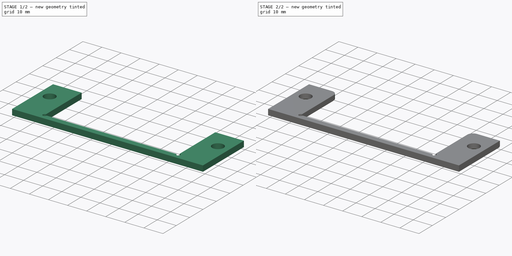
[diagram: build sequence overview — one tinted view per stage of 2, left to right]
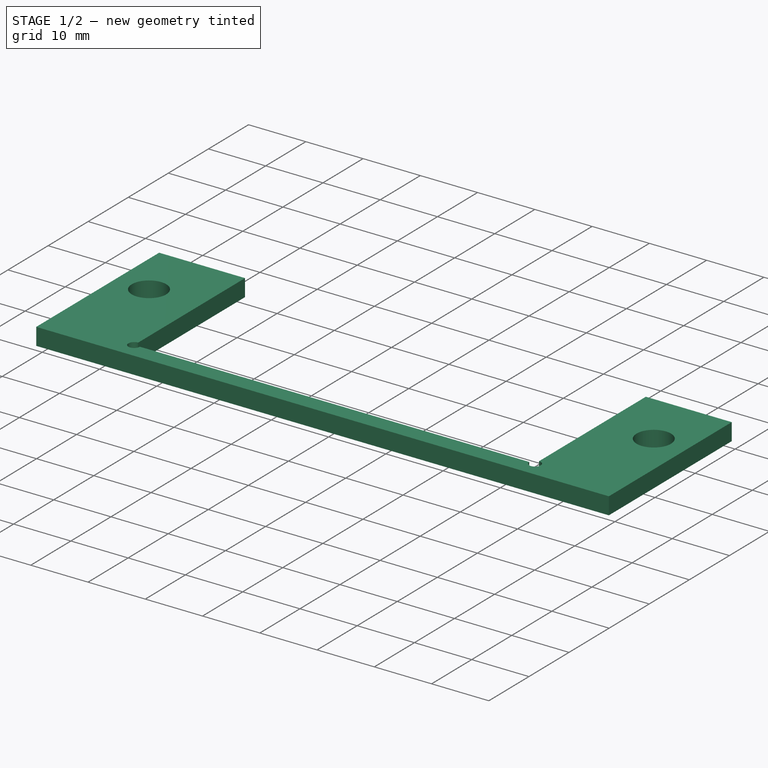
[diagram: stage 1 of 2 — iso view after this stage's code; geometry added in this stage tinted green]
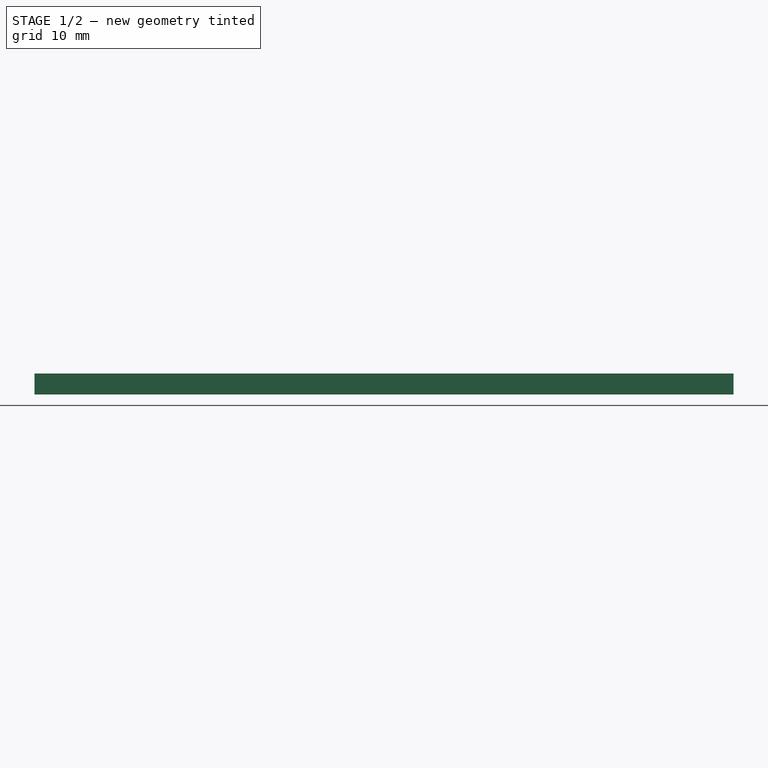
[diagram: stage 1 of 2 — front view after this stage's code; geometry added in this stage tinted green]
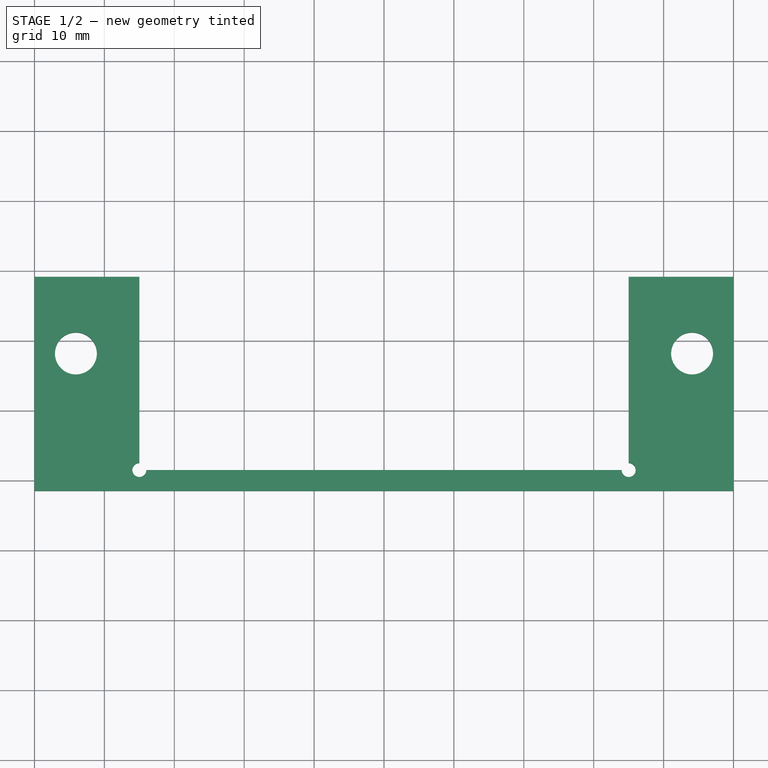
[diagram: stage 1 of 2 — top view after this stage's code; geometry added in this stage tinted green]
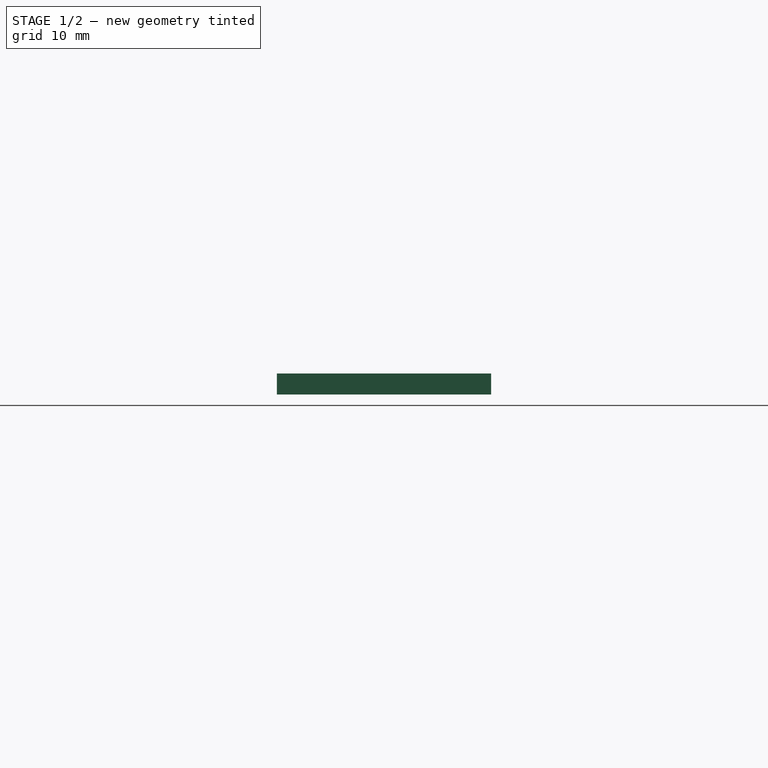
[diagram: stage 1 of 2 — right view after this stage's code; geometry added in this stage tinted green]
FCSTD DOCUMENT  (FreeCAD 0.15R4671 (Git))
Label: Ausrichtung Fraesspindel
License: All rights reserved
LicenseURL: http://de.wikipedia.org/wiki/Alle_Rechte_vorbehalten
objects: Sketcher::SketchObject×2, PartDesign::Pad×1, PartDesign::Pocket×1, PartDesign::Fillet×1, PartDesign::Chamfer×1
note: 8 computed .brp shape members not serialized (recipe doc carries the construction recipe); baked Part::Feature solids carry a one-line shape summary decoded from their .brp

FEATURE [Sketcher::SketchObject] Sketch
  sketch-geometry (12):
    g0: LineSegment StartX=-35 StartY=29.15 StartZ=0 EndX=-35 EndY=1.5 EndZ=0
    g1: LineSegment StartX=-35 StartY=1.5 StartZ=0 EndX=35 EndY=1.5 EndZ=0
    g2: LineSegment StartX=35 StartY=1.5 StartZ=0 EndX=35 EndY=29.15 EndZ=0
    g3: LineSegment StartX=35 StartY=29.15 StartZ=0 EndX=50 EndY=29.15 EndZ=0
    g4: LineSegment StartX=50 StartY=29.15 StartZ=0 EndX=50 EndY=-1.5 EndZ=0
    g5: LineSegment StartX=50 StartY=-1.5 StartZ=0 EndX=-50 EndY=-1.5 EndZ=0
    g6: LineSegment StartX=-50 StartY=-1.5 StartZ=0 EndX=-50 EndY=29.15 EndZ=0
    g7: LineSegment StartX=-50 StartY=29.15 StartZ=0 EndX=-35 EndY=29.15 EndZ=0
    g8: LineSegment [constr] StartX=35 StartY=1.5 StartZ=0 EndX=35 EndY=-1.5 EndZ=0
    g9: LineSegment [constr] StartX=-44.075 StartY=18.17 StartZ=0 EndX=44.075 EndY=18.17 EndZ=0
    g10: Circle CenterX=-44.075 CenterY=18.17 CenterZ=0 NormalX=0 NormalY=0 NormalZ=1 Radius=3
    g11: Circle CenterX=44.075 CenterY=18.17 CenterZ=0 NormalX=0 NormalY=0 NormalZ=1 Radius=3
  constraints (34):
    c: Vertical(g0)
    c: Coincident(g0,g1)
    c: Horizontal(g1)
    c: Coincident(g1,g2)
    c: Vertical(g2)
    c: Coincident(g2,g3)
    c: Horizontal(g3)
    c: Coincident(g3,g4)
    c: Vertical(g4)
    c: Coincident(g4,g5)
    c: Horizontal(g5)
    c: Coincident(g5,g6)
    c: Vertical(g6)
    c: Coincident(g6,g7)
    c: Coincident(g7,g0)
    c: Horizontal(g7)
    c: Equal(g7,g3)
    c: Symmetric(g0,g1,g-2)
    c: Equal(g0,g2)
    c: Coincident(g8,g1)
    c: PointOnObject(g8,g5)
    c: Symmetric(g1,g8,g-1)
    c: DistanceY(g8) = -3
    c: DistanceX(g3) = 15
    c: DistanceX(g5) = -100
    c: DistanceY(g6) = 30.65
    c: Horizontal(g9)
    c: Symmetric(g9,g9,g-2)
    c: Coincident(g10,g9)
    c: Coincident(g11,g9)
    c: Radius(g11) = 3
    c: Equal(g11,g10)
    c: DistanceY(g5,g9) = 19.67
    c: DistanceX(g5,g9) = 5.925
FEATURE [PartDesign::Pad] Pad
  Length = 3
  Length2 = 100
  Sketch = -> Sketch
  Type = 0
FEATURE [Sketcher::SketchObject] Sketch001
  ExternalGeometry = -> [Pad]
  Placement = pos=(0,0,3) rot=(0,0,1;0rad)
  Support = -> Pad [Face12]
  sketch-geometry (2):
    g0: Circle CenterX=-35 CenterY=1.5 CenterZ=0 NormalX=0 NormalY=0 NormalZ=1 Radius=1
    g1: Circle CenterX=35 CenterY=1.5 CenterZ=0 NormalX=0 NormalY=0 NormalZ=1 Radius=1
  constraints (4):
    c: Coincident(g0,g-3)
    c: Coincident(g1,g-3)
    c: Radius(g1) = 1
    c: Equal(g1,g0)
FEATURE [PartDesign::Pocket] Pocket
  Length = 5
  Sketch = -> Sketch001
  Type = 1
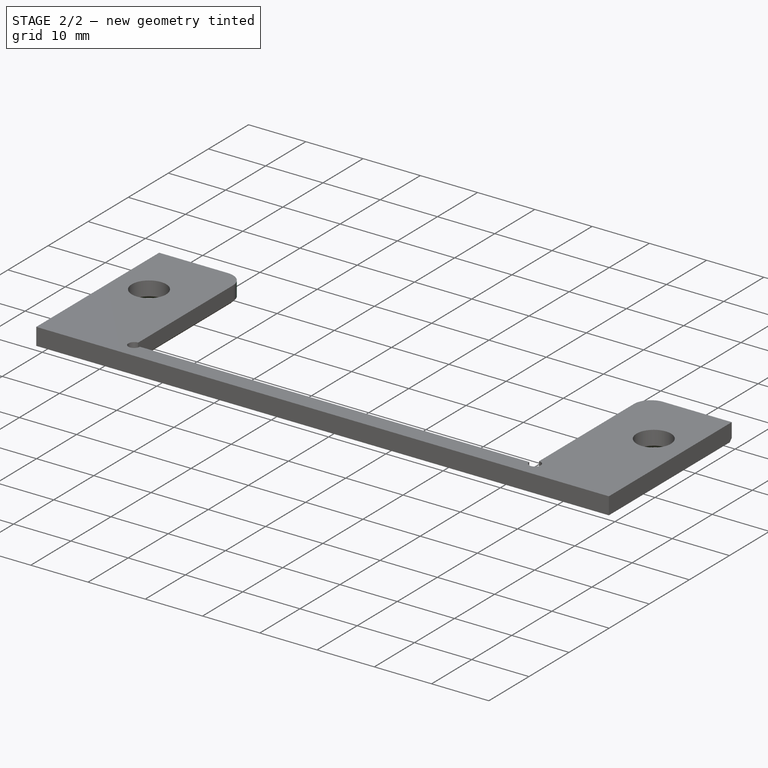
[diagram: stage 2 of 2 — iso view after this stage's code; geometry added in this stage tinted green]
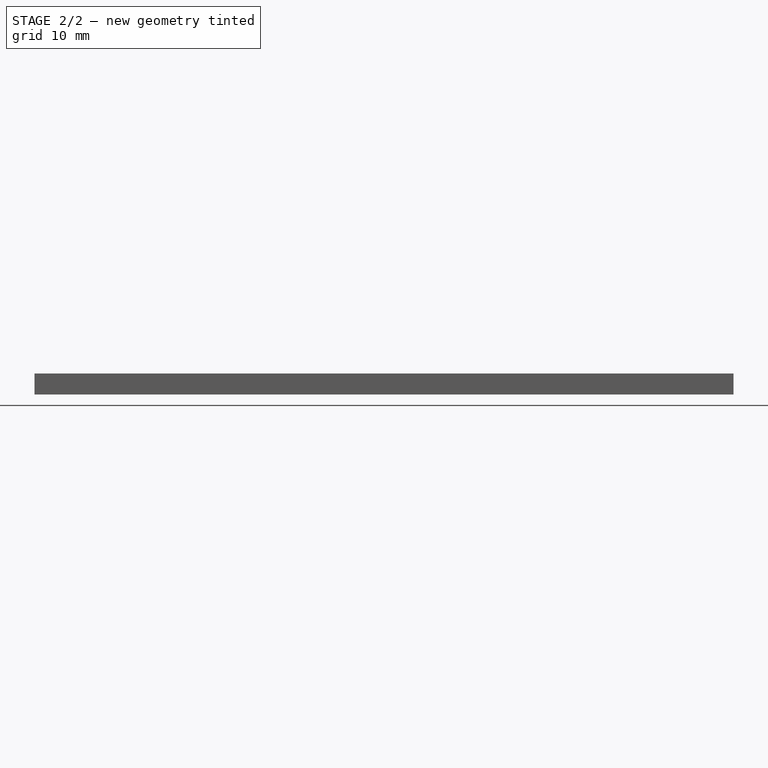
[diagram: stage 2 of 2 — front view after this stage's code; geometry added in this stage tinted green]
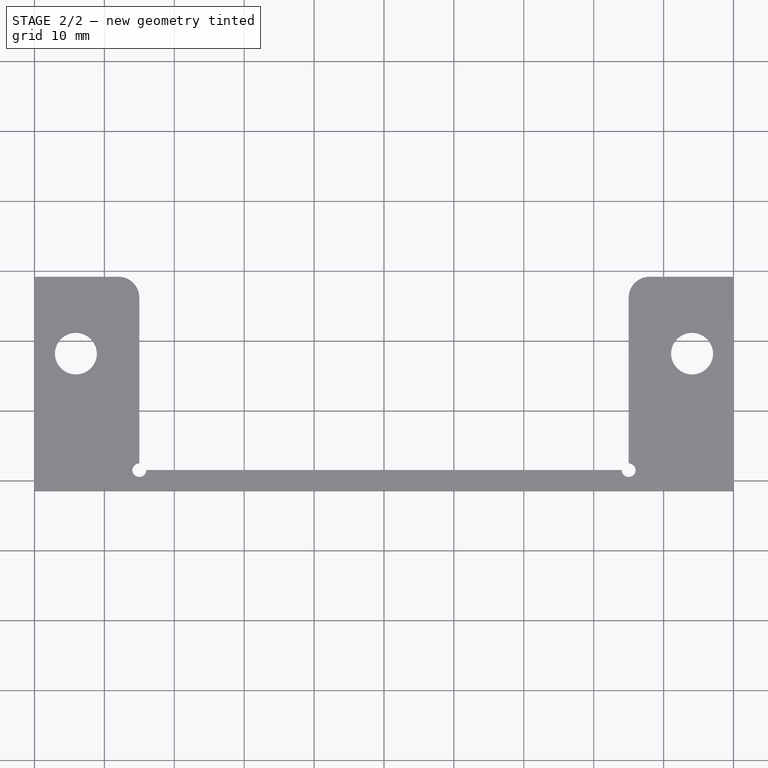
[diagram: stage 2 of 2 — top view after this stage's code; geometry added in this stage tinted green]
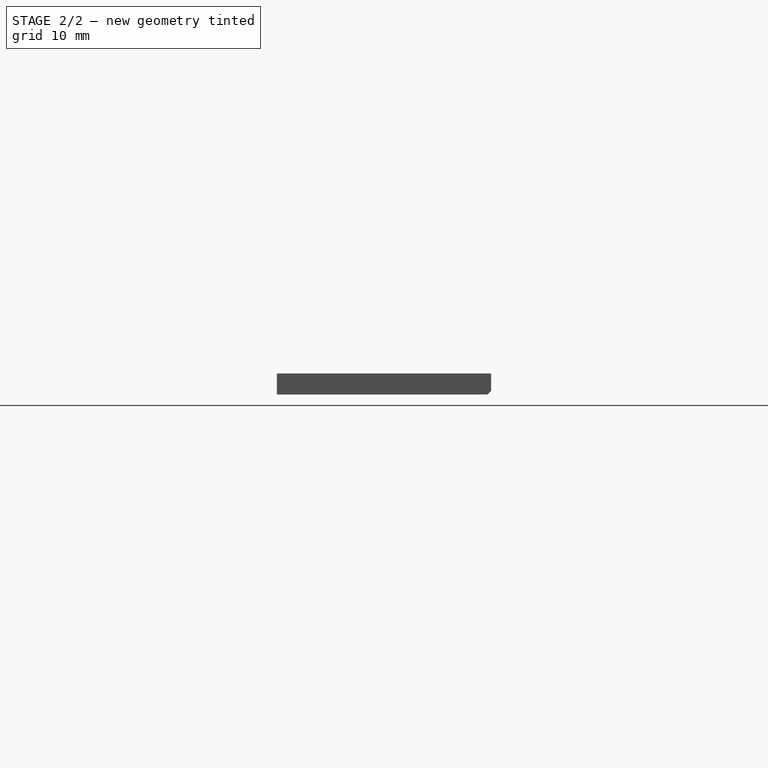
[diagram: stage 2 of 2 — right view after this stage's code; geometry added in this stage tinted green]
FEATURE [PartDesign::Fillet] Fillet
  Base = -> Pocket [Edge4,Edge34]
  Radius = 3
FEATURE [PartDesign::Chamfer] Chamfer
  Base = -> Fillet [Edge11,Edge1,Edge16,Edge6,Edge14,Edge17,Edge18]
  Size = 0.5
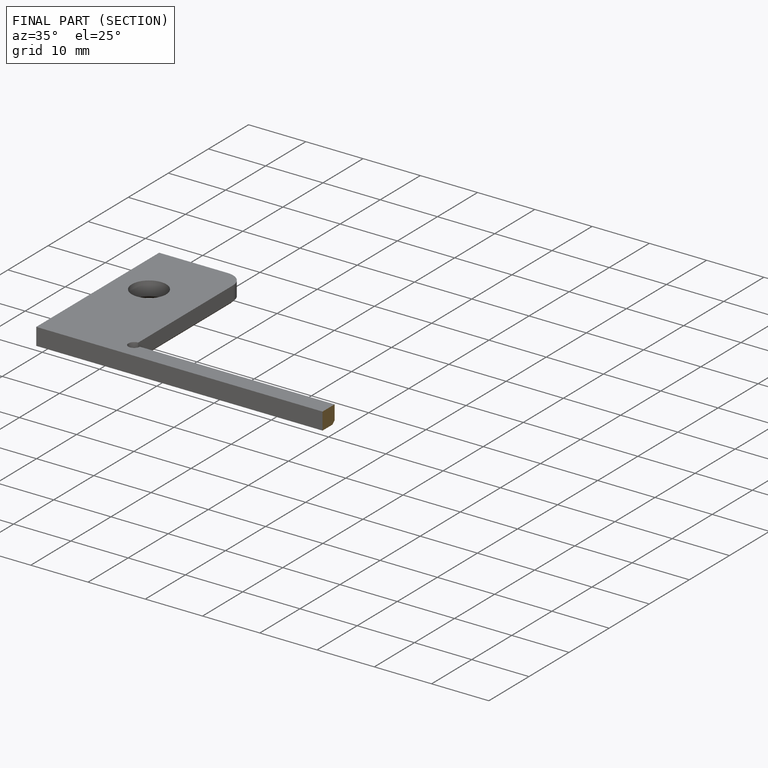
[diagram: finished part — half-section view (interior)]
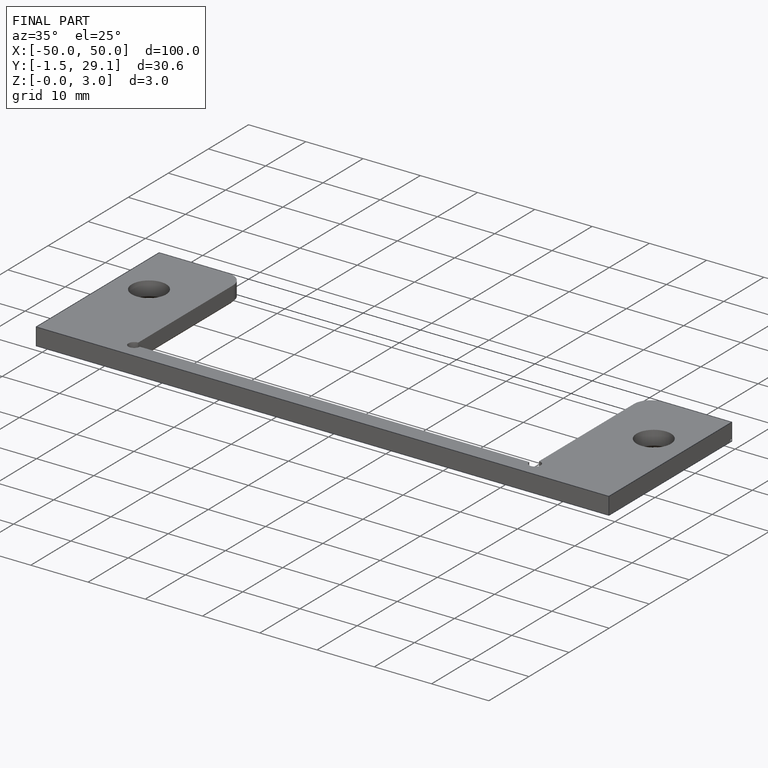
[diagram: finished part — iso view with bounding-box wireframe]
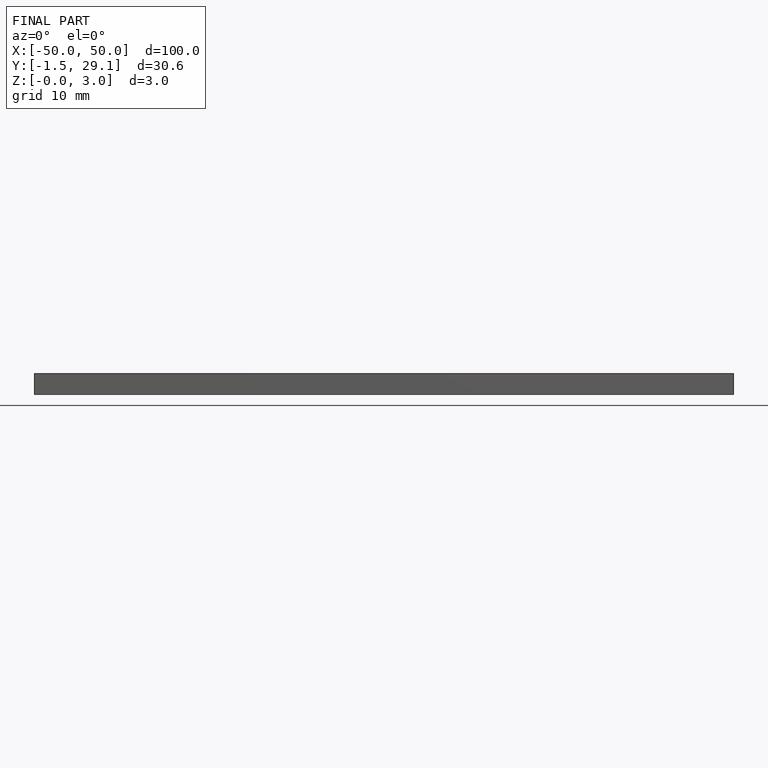
[diagram: finished part — front view with bounding-box wireframe]
